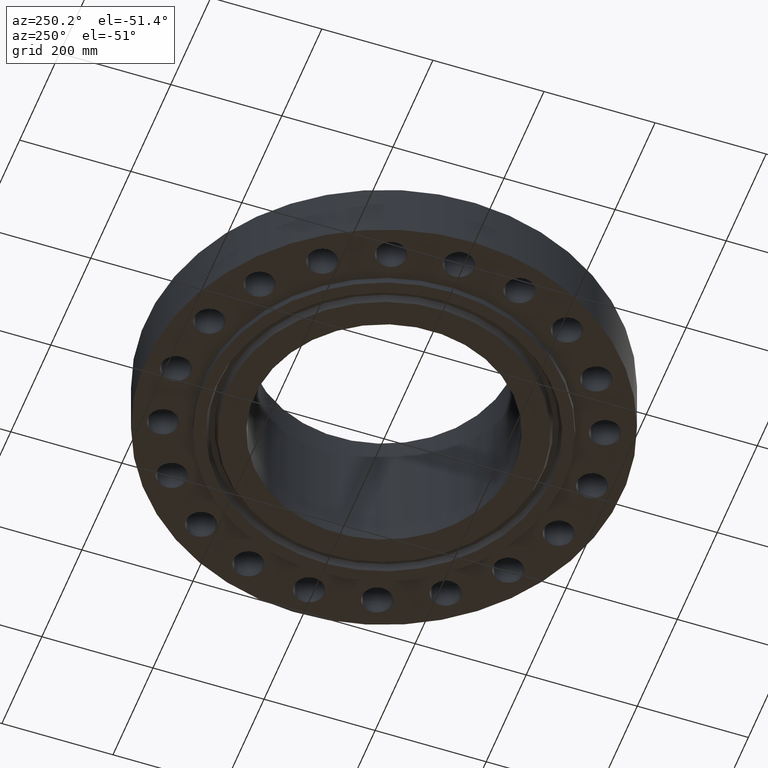
[diagram: clean part render]
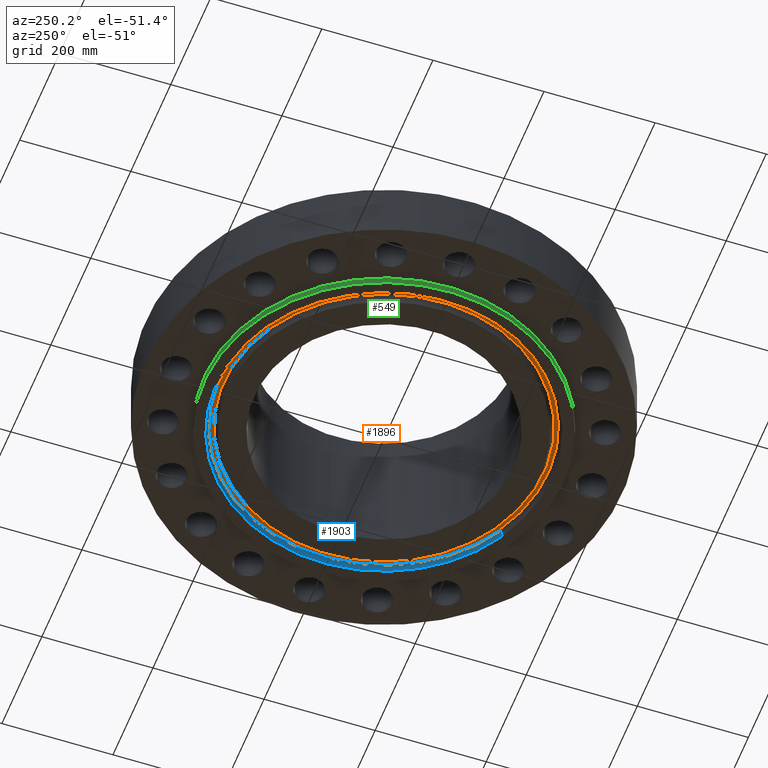
[diagram: same view with three faces highlighted in distinct colors, each labeled with its STEP entity id]
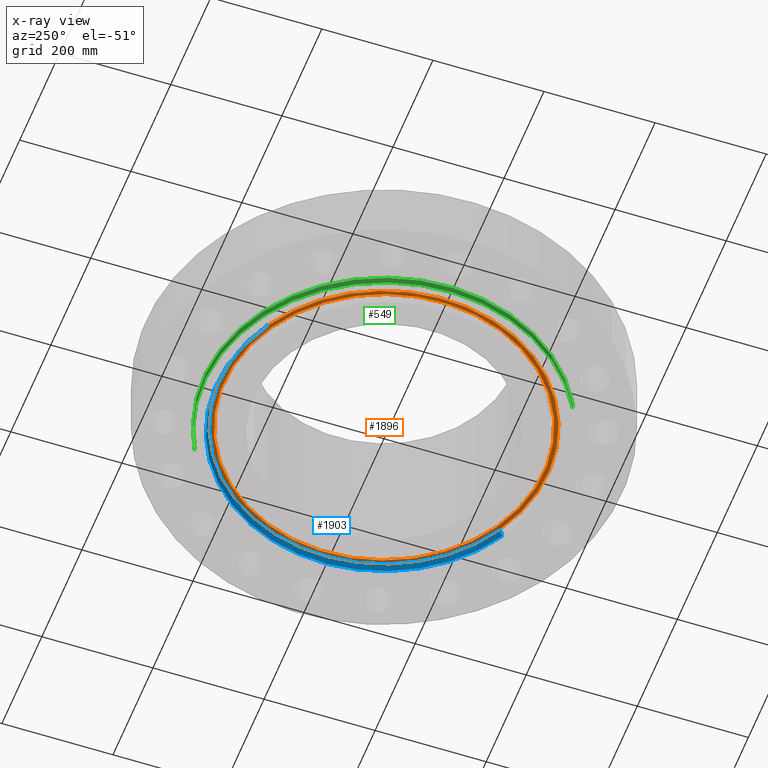
[diagram: x-ray of the same camera — body ghosted, the three highlighted faces saturated]
A machine part, auxiliary view with three faces highlighted in distinct colors.
The next image is the same camera in x-ray (body ghosted, the three faces saturated) — at least one of them is partly hidden behind the body in this view.
Their STEP definitions:

[orange] entity #1896 — the highlighted planar face has unit normal (0, 0, -1).
#570=AXIS2_PLACEMENT_3D('Plane Axis2P3D',#567,#568,#569) ;
#1818=AXIS2_PLACEMENT_3D('Circle Axis2P3D',#1816,#1817,$) ;
#1864=AXIS2_PLACEMENT_3D('Circle Axis2P3D',#1862,#1863,$) ;
#1880=AXIS2_PLACEMENT_3D('Circle Axis2P3D',#1878,#1879,$) ;
#1889=AXIS2_PLACEMENT_3D('Circle Axis2P3D',#1887,#1888,$) ;
#567=CARTESIAN_POINT('Axis2P3D Location',(0.,12.7500000001,0.)) ;
#1813=CARTESIAN_POINT('Vertex',(-5.57909644433,10.2124675396,-3.58418456769E-016)) ;
#1816=CARTESIAN_POINT('Axis2P3D Location',(0.,0.,-3.58418456769E-016)) ;
#1820=CARTESIAN_POINT('Vertex',(5.57909644433,-10.2124675396,-3.58418456769E-016)) ;
#1862=CARTESIAN_POINT('Axis2P3D Location',(0.,0.,-3.58418456769E-016)) ;
#1878=CARTESIAN_POINT('Axis2P3D Location',(0.,0.,0.)) ;
#1882=CARTESIAN_POINT('Vertex',(5.44769094361,-9.97193138396,5.76966296262E-016)) ;
#1884=CARTESIAN_POINT('Vertex',(-5.44769094361,9.97193138396,5.76966296262E-016)) ;
#1887=CARTESIAN_POINT('Axis2P3D Location',(0.,0.,0.)) ;
#568=DIRECTION('Axis2P3D Direction',(0.,0.,-0.0393700787402)) ;
#569=DIRECTION('Axis2P3D XDirection',(0.0393700787402,0.,0.)) ;
#1817=DIRECTION('Axis2P3D Direction',(0.,0.,0.0393700787402)) ;
#1863=DIRECTION('Axis2P3D Direction',(0.,0.,0.0393700787402)) ;
#1879=DIRECTION('Axis2P3D Direction',(0.,0.,-0.0393700787402)) ;
#1888=DIRECTION('Axis2P3D Direction',(0.,0.,-0.0393700787402)) ;
#1875=ORIENTED_EDGE('',*,*,#1822,.F.) ;
#1876=ORIENTED_EDGE('',*,*,#1866,.F.) ;
#1893=ORIENTED_EDGE('',*,*,#1886,.T.) ;
#1894=ORIENTED_EDGE('',*,*,#1891,.T.) ;
#1895=FACE_BOUND('',#1892,.T.) ;
#1896=ADVANCED_FACE('PartBody',(#1877,#1895),#571,.T.) ;
#1819=CIRCLE('generated circle',#1818,11.6370447444) ;
#1865=CIRCLE('generated circle',#1864,11.6370447444) ;
#1881=CIRCLE('generated circle',#1880,11.3629552557) ;
#1890=CIRCLE('generated circle',#1889,11.3629552557) ;
#1822=EDGE_CURVE('',#1814,#1821,#1819,.T.) ;
#1866=EDGE_CURVE('',#1821,#1814,#1865,.T.) ;
#1886=EDGE_CURVE('',#1883,#1885,#1881,.F.) ;
#1891=EDGE_CURVE('',#1885,#1883,#1890,.F.) ;
#1874=EDGE_LOOP('',(#1875,#1876)) ;
#1892=EDGE_LOOP('',(#1893,#1894)) ;
#1877=FACE_OUTER_BOUND('',#1874,.T.) ;
#571=PLANE('',#570) ;
#1814=VERTEX_POINT('',#1813) ;
#1821=VERTEX_POINT('',#1820) ;
#1883=VERTEX_POINT('',#1882) ;
#1885=VERTEX_POINT('',#1884) ;

[blue] entity #1903 — the highlighted conical surface has half-angle 23 deg.
#1764=AXIS2_PLACEMENT_3D('Circle Axis2P3D',#1762,#1763,$) ;
#1838=AXIS2_PLACEMENT_3D('Cone Axis2P3D',#1835,#1836,#1837) ;
#1859=AXIS2_PLACEMENT_3D('Circle Axis2P3D',#1857,#1858,$) ;
#1757=CARTESIAN_POINT('Vertex',(5.70068128063,-10.4350270896,-0.500000000002)) ;
#1759=CARTESIAN_POINT('Vertex',(-5.70068128063,10.4350270896,-0.500000000002)) ;
#1762=CARTESIAN_POINT('Axis2P3D Location',(-1.1189649382E-015,-2.23792987641E-015,-0.500000000002)) ;
#1804=CARTESIAN_POINT('Vertex',(-5.60667854028,10.2629562276,-0.0380793044696)) ;
#1806=CARTESIAN_POINT('Vertex',(5.60667854028,-10.2629562276,-0.0380793044696)) ;
#1835=CARTESIAN_POINT('Axis2P3D Location',(0.,0.,-0.0380793044696)) ;
#1840=CARTESIAN_POINT('Line Origine',(-5.65367991045,10.3489916586,-0.269039652236)) ;
#1845=CARTESIAN_POINT('Line Origine',(5.65367991045,-10.3489916586,-0.269039652236)) ;
#1857=CARTESIAN_POINT('Axis2P3D Location',(0.,0.,-0.0380793044696)) ;
#1763=DIRECTION('Axis2P3D Direction',(0.,0.,-0.0393700787402)) ;
#1836=DIRECTION('Axis2P3D Direction',(-0.,-0.,-0.0393700787402)) ;
#1837=DIRECTION('Axis2P3D XDirection',(-0.0188750212049,0.0345504945626,0.)) ;
#1841=DIRECTION('Vector Direction',(-0.00737505833565,0.0134999537303,-0.0362403485611)) ;
#1846=DIRECTION('Vector Direction',(0.00737505833565,-0.0134999537303,-0.0362403485611)) ;
#1858=DIRECTION('Axis2P3D Direction',(0.,0.,0.0393700787402)) ;
#1842=VECTOR('Line Direction',#1841,0.0393700787402) ;
#1847=VECTOR('Line Direction',#1846,0.0393700787402) ;
#1898=ORIENTED_EDGE('',*,*,#1766,.T.) ;
#1899=ORIENTED_EDGE('',*,*,#1849,.T.) ;
#1900=ORIENTED_EDGE('',*,*,#1861,.T.) ;
#1901=ORIENTED_EDGE('',*,*,#1844,.F.) ;
#1903=ADVANCED_FACE('PartBody',(#1902),#1839,.F.) ;
#1765=CIRCLE('generated circle',#1764,11.89065) ;
#1860=CIRCLE('generated circle',#1859,11.6945762977) ;
#1839=CONICAL_SURFACE('Cone',#1838,11.6945762977,0.401425727959) ;
#1766=EDGE_CURVE('',#1760,#1758,#1765,.T.) ;
#1844=EDGE_CURVE('',#1760,#1805,#1843,.F.) ;
#1849=EDGE_CURVE('',#1758,#1807,#1848,.F.) ;
#1861=EDGE_CURVE('',#1807,#1805,#1860,.T.) ;
#1897=EDGE_LOOP('',(#1898,#1899,#1900,#1901)) ;
#1902=FACE_OUTER_BOUND('',#1897,.T.) ;
#1843=LINE('Line',#1840,#1842) ;
#1848=LINE('Line',#1845,#1847) ;
#1758=VERTEX_POINT('',#1757) ;
#1760=VERTEX_POINT('',#1759) ;
#1805=VERTEX_POINT('',#1804) ;
#1807=VERTEX_POINT('',#1806) ;

[green] entity #549 — the highlighted cylindrical surface (partial cylindrical patch) has radius 323.85 mm, axis along (0, 0, -1).
#513=AXIS2_PLACEMENT_3D('Cylinder Axis2P3D',#510,#511,#512) ;
#517=AXIS2_PLACEMENT_3D('Circle Axis2P3D',#515,#516,$) ;
#533=AXIS2_PLACEMENT_3D('Circle Axis2P3D',#531,#532,$) ;
#510=CARTESIAN_POINT('Axis2P3D Location',(0.,0.,4.62500000002)) ;
#515=CARTESIAN_POINT('Axis2P3D Location',(0.,0.,-0.500000000002)) ;
#519=CARTESIAN_POINT('Vertex',(-6.11267561723,-11.1891776641,-0.500000000002)) ;
#521=CARTESIAN_POINT('Vertex',(6.11267561723,11.1891776641,-0.500000000002)) ;
#524=CARTESIAN_POINT('Line Origine',(-6.11267561723,-11.1891776641,-0.250000000001)) ;
#528=CARTESIAN_POINT('Vertex',(-6.11267561723,-11.1891776641,2.23792987641E-015)) ;
#531=CARTESIAN_POINT('Axis2P3D Location',(0.,0.,1.67844740731E-015)) ;
#535=CARTESIAN_POINT('Vertex',(6.11267561723,11.1891776641,2.23792987641E-015)) ;
#538=CARTESIAN_POINT('Line Origine',(6.11267561723,11.1891776641,-0.250000000001)) ;
#511=DIRECTION('Axis2P3D Direction',(0.,0.,-0.0393700787402)) ;
#512=DIRECTION('Axis2P3D XDirection',(0.0188750212049,0.0345504945626,0.)) ;
#516=DIRECTION('Axis2P3D Direction',(0.,0.,-0.0393700787402)) ;
#525=DIRECTION('Vector Direction',(0.,0.,-0.0393700787402)) ;
#532=DIRECTION('Axis2P3D Direction',(0.,0.,-0.0393700787402)) ;
#539=DIRECTION('Vector Direction',(0.,0.,-0.0393700787402)) ;
#526=VECTOR('Line Direction',#525,0.0393700787402) ;
#540=VECTOR('Line Direction',#539,0.0393700787402) ;
#544=ORIENTED_EDGE('',*,*,#523,.F.) ;
#545=ORIENTED_EDGE('',*,*,#530,.T.) ;
#546=ORIENTED_EDGE('',*,*,#537,.T.) ;
#547=ORIENTED_EDGE('',*,*,#542,.F.) ;
#549=ADVANCED_FACE('PartBody',(#548),#514,.T.) ;
#518=CIRCLE('generated circle',#517,12.7500000001) ;
#534=CIRCLE('generated circle',#533,12.7500000001) ;
#514=CYLINDRICAL_SURFACE('generated cylinder',#513,12.7500000001) ;
#523=EDGE_CURVE('',#520,#522,#518,.T.) ;
#530=EDGE_CURVE('',#520,#529,#527,.F.) ;
#537=EDGE_CURVE('',#529,#536,#534,.T.) ;
#542=EDGE_CURVE('',#522,#536,#541,.F.) ;
#543=EDGE_LOOP('',(#544,#545,#546,#547)) ;
#548=FACE_OUTER_BOUND('',#543,.T.) ;
#527=LINE('Line',#524,#526) ;
#541=LINE('Line',#538,#540) ;
#520=VERTEX_POINT('',#519) ;
#522=VERTEX_POINT('',#521) ;
#529=VERTEX_POINT('',#528) ;
#536=VERTEX_POINT('',#535) ;